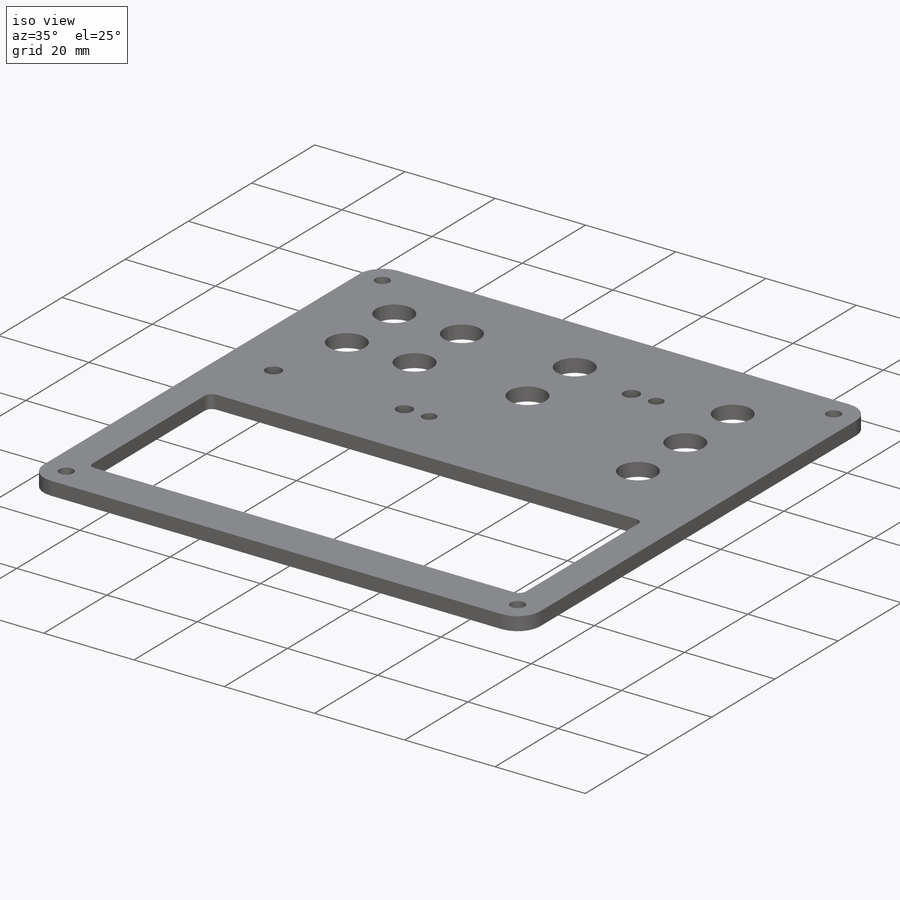
[diagram: iso view]
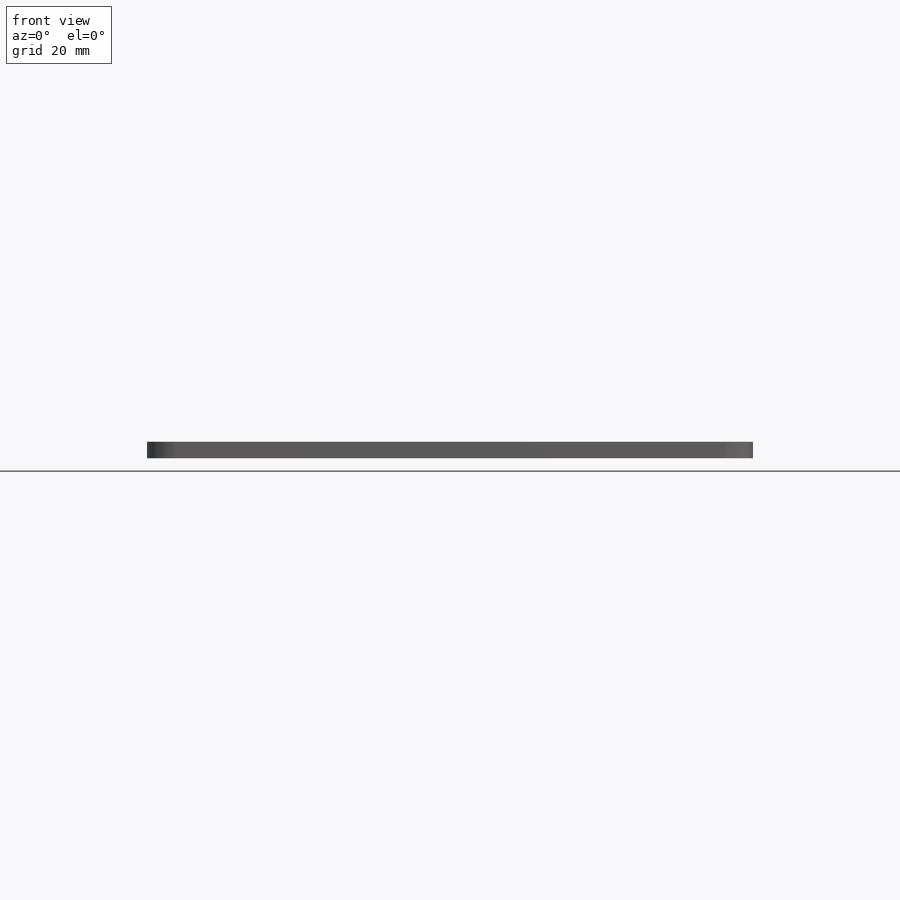
[diagram: front view]
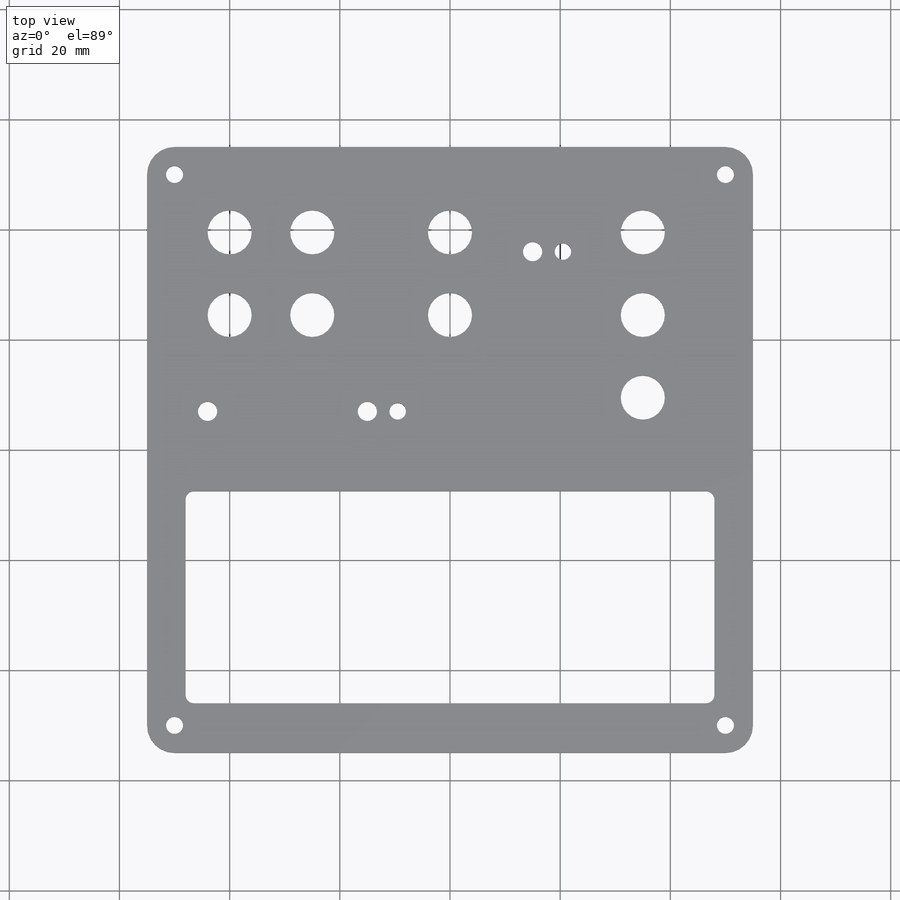
[diagram: top view]
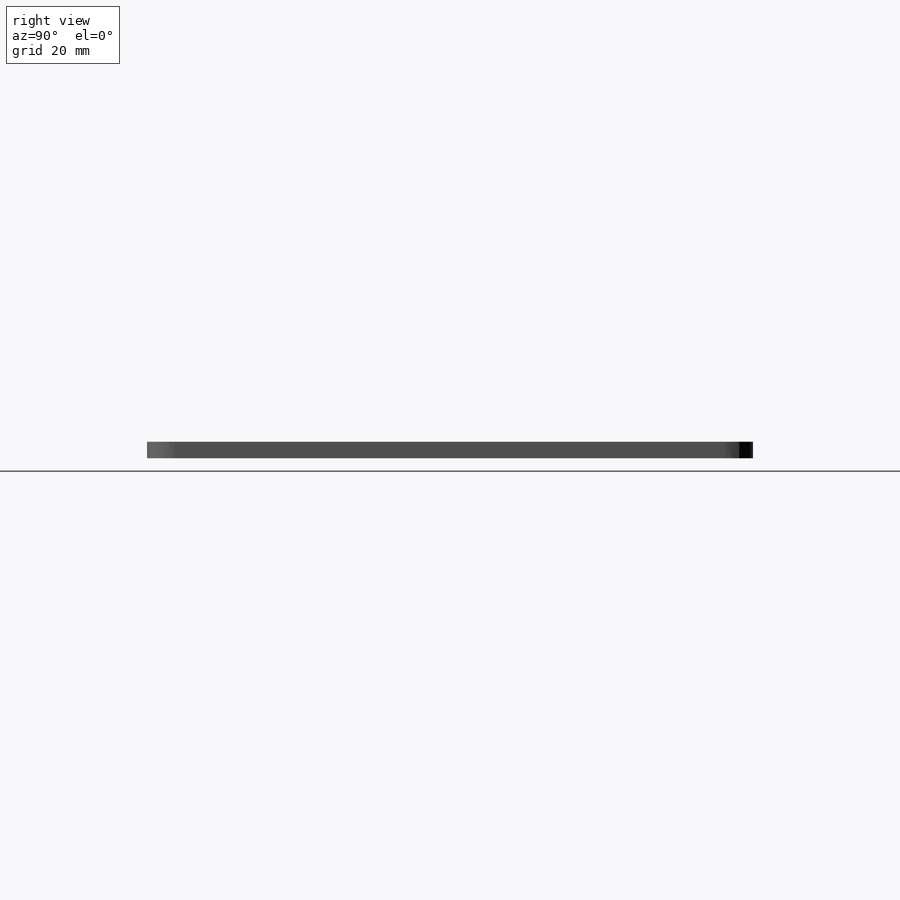
[diagram: right view]
SOLIDWORKS PART (.sldprt)
format: sldprt  version: not decoded by parser v0  size: 349,696 bytes
history: native  units: mm
features: sketch x4, cut_extrude x3, fillet x2, material x1, extrude x1 (+13 scaffold rows collapsed)
feature tree (24):
  scaffold x13  (default folders/planes/origin — collapsed)
  material  "Material <not specified>"
  sketch  "Sketch1"  dims[c1.D4=3.1mm c1.D8=3.1mm c1.D9=3.1mm c1.D10=3.1mm c2.D4=3.1mm c2.D1=110.0mm c2.D2=110.0mm c2.D3=5.0mm c3.D4=5.0mm c3.D5=5.0mm c3.D6=5.0mm c3.D7=5.0mm]
  extrude  "Boss-Extrude1"  Depth=3mm
  fillet  "Fillet1"  Radius=5mm
  sketch  "Sketch2"  dims[c1.D1=95.25mm c1.D2=38.1mm c2.D1=47.625mm c2.D3=47.625mm c2.D4=9.0mm c3.D1=7.0mm c3.D2=7.0mm c3.D3=38.5mm c3.D5=95.0mm]
  cut_extrude  "Cut-Extrude1"  [1 undecoded]
  fillet  "Fillet2"  Radius=1.5mm
  sketch  "Sketch3"  dims[c1.D3=8.0mm c1.D4=8.0mm c1.D5=7.0mm c1.D8=8.0mm c1.D9=7.0mm c1.D11=8.0mm c1.D12=8.0mm c1.D13=8.0mm c2.D5=8.0mm c2.D15=8.0mm c2.D16=8.0mm c2.D1=15.5mm c2.D2=18.0mm c2.D6=15.0mm c2.D7=15.0mm c2.D10=28.0mm c3.D1=15.0mm c3.D2=15.5mm c3.D6=15.0mm c3.D7=15.0mm c3.D9=15.0mm c3.D10=25.0mm c3.D14=35.0mm]
  cut_extrude  "Cut-Extrude2"  [1 undecoded]
  sketch  "Sketch4"  dims[c1.D3=3.5mm c1.D4=3.5mm c1.D6=3.5mm c1.D8=3.0mm c1.D9=3.5mm c1.D10=3.0mm c1.D1=11.0mm c1.D2=61.0mm c2.D4=40.0mm c2.D5=62.0mm c2.D7=5.5mm c2.D11=5.5mm c2.D12=40.0mm c2.D13=19.0mm]
  cut_extrude  "Cut-Extrude3"  [1 undecoded]
decode coverage: 7 of 10 modeling features carry decoded parameters
note: 3 parameter values undecoded
summary: no parameter record found for 3 features
note: suppression state not decoded; provenance and decode notes live in map.json
